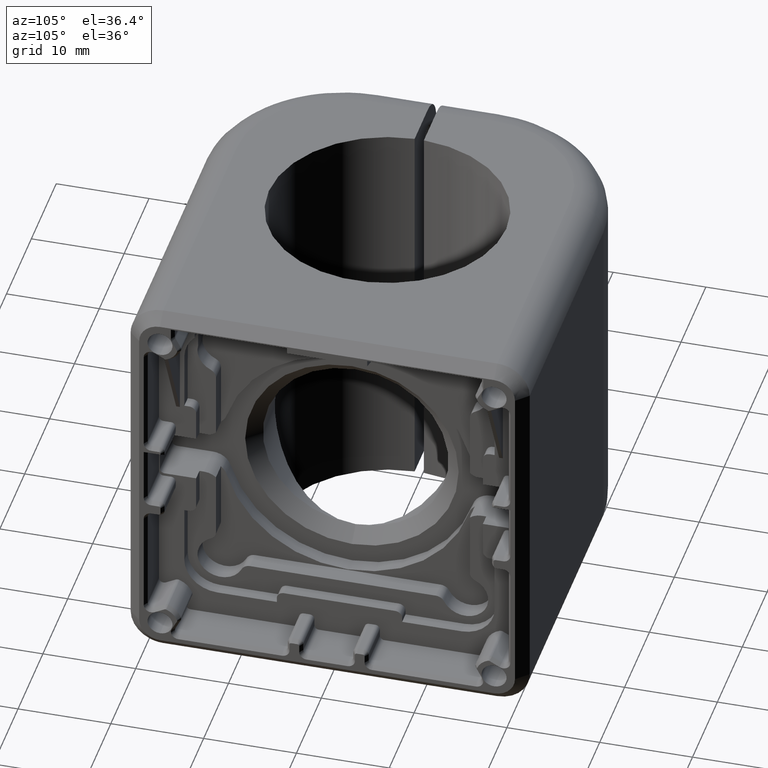
[diagram: clean part render]
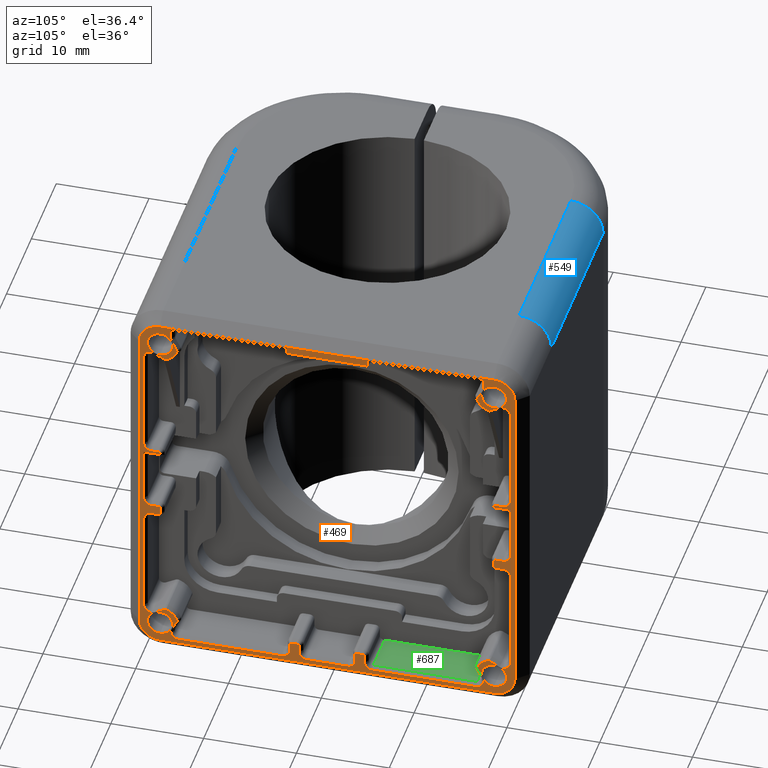
[diagram: same view with three faces highlighted in distinct colors, each labeled with its STEP entity id]
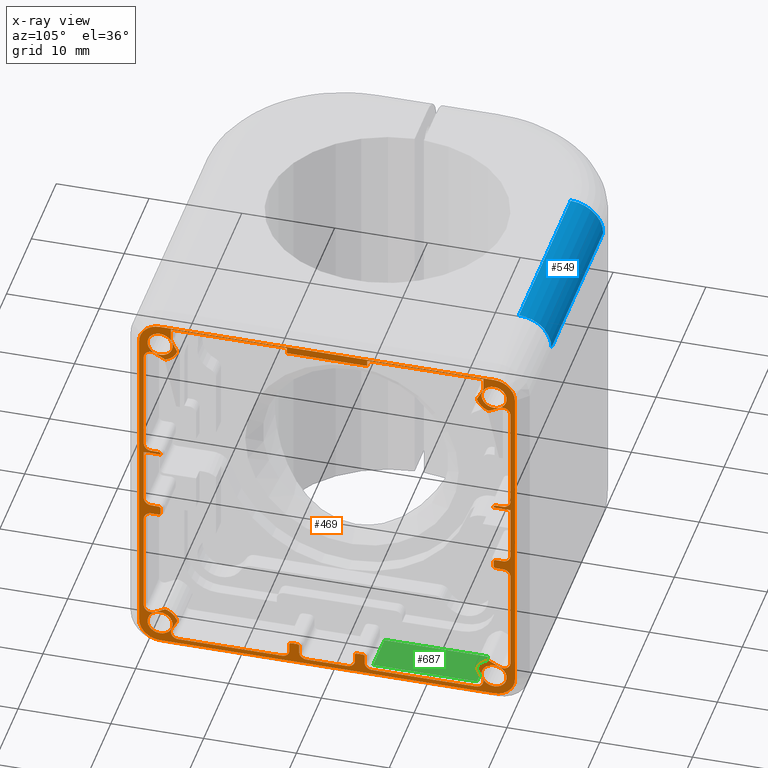
[diagram: x-ray of the same camera — body ghosted, the three highlighted faces saturated]
A machine part, auxiliary view with three faces highlighted in distinct colors.
The next image is the same camera in x-ray (body ghosted, the three faces saturated) — at least one of them is partly hidden behind the body in this view.
Their STEP definitions:

[orange] entity #469 — the highlighted planar face has unit normal (1, 0, 0).
#469=ADVANCED_FACE('',(#1327,#1328,#1329,#1330,#1331,#898),#4246,.T.);
#898=FACE_OUTER_BOUND('',#1363,.F.);
#1327=FACE_BOUND('',#1358,.F.);
#1328=FACE_BOUND('',#1359,.F.);
#1329=FACE_BOUND('',#1360,.F.);
#1330=FACE_BOUND('',#1361,.F.);
#1331=FACE_BOUND('',#1362,.F.);
#1358=EDGE_LOOP('',(#1818,#1819,#1820,#1821,#1822,#1823,#1824,#1825,#1826,
#1827,#1828,#1829,#1830,#1831,#1832,#1833,#1834,#1835,#1836,#1837,#1838,
#1839,#1840,#1841,#1842,#1843,#1844,#1845,#1846,#1847,#1848,#1849,#1850,
#1851,#1852,#1853,#1854,#1855,#1856,#1857,#1858,#1859,#1860,#1861,#1862,
#1863,#1864,#1865,#1866,#1867,#1868,#1869,#1870,#1871,#1872,#1873,#1874,
#1875,#1876,#1877,#1878,#1879,#1880,#1881,#1882,#1883,#1884,#1885,#1886,
#1887,#1888,#1889,#1890,#1891,#1892,#1893,#1894,#1895,#1896,#1897,#1898,
#1899,#1900,#1901,#1902,#1903,#1904,#1905,#1906,#1907,#1908,#1909,#1910,
#1911,#1912,#1913,#1914,#1915,#1916,#1917,#1918,#1919,#1920,#1921,#1922,
#1923));
#1359=EDGE_LOOP('',(#1924,#1925));
#1360=EDGE_LOOP('',(#1926,#1927));
#1361=EDGE_LOOP('',(#1928,#1929));
#1362=EDGE_LOOP('',(#1930,#1931));
#1363=EDGE_LOOP('',(#1932,#1933,#1934,#1935,#1936,#1937,#1938,#1939,#1940,
#1941,#1942,#1943));
#1818=ORIENTED_EDGE('',*,*,#6423,.T.);
#1819=ORIENTED_EDGE('',*,*,#6438,.T.);
#1820=ORIENTED_EDGE('',*,*,#6439,.T.);
#1821=ORIENTED_EDGE('',*,*,#6437,.T.);
#1822=ORIENTED_EDGE('',*,*,#6426,.T.);
#1823=ORIENTED_EDGE('',*,*,#6300,.F.);
#1824=ORIENTED_EDGE('',*,*,#6299,.T.);
#1825=ORIENTED_EDGE('',*,*,#6298,.F.);
#1826=ORIENTED_EDGE('',*,*,#6301,.F.);
#1827=ORIENTED_EDGE('',*,*,#6333,.T.);
#1828=ORIENTED_EDGE('',*,*,#6332,.T.);
#1829=ORIENTED_EDGE('',*,*,#6331,.T.);
#1830=ORIENTED_EDGE('',*,*,#6330,.F.);
#1831=ORIENTED_EDGE('',*,*,#6329,.F.);
#1832=ORIENTED_EDGE('',*,*,#6328,.F.);
#1833=ORIENTED_EDGE('',*,*,#6327,.T.);
#1834=ORIENTED_EDGE('',*,*,#6326,.T.);
#1835=ORIENTED_EDGE('',*,*,#6325,.T.);
#1836=ORIENTED_EDGE('',*,*,#6324,.T.);
#1837=ORIENTED_EDGE('',*,*,#6323,.T.);
#1838=ORIENTED_EDGE('',*,*,#6322,.T.);
#1839=ORIENTED_EDGE('',*,*,#6321,.F.);
#1840=ORIENTED_EDGE('',*,*,#6320,.T.);
#1841=ORIENTED_EDGE('',*,*,#6338,.T.);
#1842=ORIENTED_EDGE('',*,*,#6337,.F.);
#1843=ORIENTED_EDGE('',*,*,#6339,.F.);
#1844=ORIENTED_EDGE('',*,*,#6398,.T.);
#1845=ORIENTED_EDGE('',*,*,#6397,.T.);
#1846=ORIENTED_EDGE('',*,*,#6396,.T.);
#1847=ORIENTED_EDGE('',*,*,#6395,.T.);
#1848=ORIENTED_EDGE('',*,*,#6394,.T.);
#1849=ORIENTED_EDGE('',*,*,#6393,.F.);
#1850=ORIENTED_EDGE('',*,*,#6392,.T.);
#1851=ORIENTED_EDGE('',*,*,#6391,.F.);
#1852=ORIENTED_EDGE('',*,*,#6390,.T.);
#1853=ORIENTED_EDGE('',*,*,#6389,.T.);
#1854=ORIENTED_EDGE('',*,*,#6388,.T.);
#1855=ORIENTED_EDGE('',*,*,#6387,.T.);
#1856=ORIENTED_EDGE('',*,*,#6386,.T.);
#1857=ORIENTED_EDGE('',*,*,#6385,.T.);
#1858=ORIENTED_EDGE('',*,*,#6384,.F.);
#1859=ORIENTED_EDGE('',*,*,#6383,.F.);
#1860=ORIENTED_EDGE('',*,*,#6382,.F.);
#1861=ORIENTED_EDGE('',*,*,#6381,.T.);
#1862=ORIENTED_EDGE('',*,*,#6380,.T.);
#1863=ORIENTED_EDGE('',*,*,#6379,.T.);
#1864=ORIENTED_EDGE('',*,*,#6378,.T.);
#1865=ORIENTED_EDGE('',*,*,#6377,.T.);
#1866=ORIENTED_EDGE('',*,*,#6376,.T.);
#1867=ORIENTED_EDGE('',*,*,#6375,.F.);
#1868=ORIENTED_EDGE('',*,*,#6374,.T.);
#1869=ORIENTED_EDGE('',*,*,#6373,.F.);
#1870=ORIENTED_EDGE('',*,*,#6372,.T.);
#1871=ORIENTED_EDGE('',*,*,#6371,.T.);
#1872=ORIENTED_EDGE('',*,*,#6370,.T.);
#1873=ORIENTED_EDGE('',*,*,#6369,.T.);
#1874=ORIENTED_EDGE('',*,*,#6368,.T.);
#1875=ORIENTED_EDGE('',*,*,#6367,.T.);
#1876=ORIENTED_EDGE('',*,*,#6366,.T.);
#1877=ORIENTED_EDGE('',*,*,#6365,.F.);
#1878=ORIENTED_EDGE('',*,*,#6364,.T.);
#1879=ORIENTED_EDGE('',*,*,#6363,.F.);
#1880=ORIENTED_EDGE('',*,*,#6362,.T.);
#1881=ORIENTED_EDGE('',*,*,#6361,.T.);
#1882=ORIENTED_EDGE('',*,*,#6360,.T.);
#1883=ORIENTED_EDGE('',*,*,#6359,.T.);
#1884=ORIENTED_EDGE('',*,*,#6358,.T.);
#1885=ORIENTED_EDGE('',*,*,#6357,.T.);
#1886=ORIENTED_EDGE('',*,*,#6356,.F.);
#1887=ORIENTED_EDGE('',*,*,#6355,.F.);
#1888=ORIENTED_EDGE('',*,*,#6354,.F.);
#1889=ORIENTED_EDGE('',*,*,#6353,.T.);
#1890=ORIENTED_EDGE('',*,*,#6352,.T.);
#1891=ORIENTED_EDGE('',*,*,#6351,.T.);
#1892=ORIENTED_EDGE('',*,*,#6350,.T.);
#1893=ORIENTED_EDGE('',*,*,#6349,.T.);
#1894=ORIENTED_EDGE('',*,*,#6348,.T.);
#1895=ORIENTED_EDGE('',*,*,#6347,.F.);
#1896=ORIENTED_EDGE('',*,*,#6346,.T.);
#1897=ORIENTED_EDGE('',*,*,#6345,.F.);
#1898=ORIENTED_EDGE('',*,*,#6344,.T.);
#1899=ORIENTED_EDGE('',*,*,#6343,.T.);
#1900=ORIENTED_EDGE('',*,*,#6342,.T.);
#1901=ORIENTED_EDGE('',*,*,#6341,.T.);
#1902=ORIENTED_EDGE('',*,*,#6340,.T.);
#1903=ORIENTED_EDGE('',*,*,#6336,.F.);
#1904=ORIENTED_EDGE('',*,*,#6335,.F.);
#1905=ORIENTED_EDGE('',*,*,#6334,.T.);
#1906=ORIENTED_EDGE('',*,*,#6317,.T.);
#1907=ORIENTED_EDGE('',*,*,#6316,.F.);
#1908=ORIENTED_EDGE('',*,*,#6315,.T.);
#1909=ORIENTED_EDGE('',*,*,#6314,.T.);
#1910=ORIENTED_EDGE('',*,*,#6313,.T.);
#1911=ORIENTED_EDGE('',*,*,#6312,.T.);
#1912=ORIENTED_EDGE('',*,*,#6311,.T.);
#1913=ORIENTED_EDGE('',*,*,#6310,.T.);
#1914=ORIENTED_EDGE('',*,*,#6309,.F.);
#1915=ORIENTED_EDGE('',*,*,#6308,.F.);
#1916=ORIENTED_EDGE('',*,*,#6307,.F.);
#1917=ORIENTED_EDGE('',*,*,#6306,.T.);
#1918=ORIENTED_EDGE('',*,*,#6305,.T.);
#1919=ORIENTED_EDGE('',*,*,#6304,.T.);
#1920=ORIENTED_EDGE('',*,*,#6297,.F.);
#1921=ORIENTED_EDGE('',*,*,#6294,.F.);
#1922=ORIENTED_EDGE('',*,*,#6295,.T.);
#1923=ORIENTED_EDGE('',*,*,#6296,.F.);
#1924=ORIENTED_EDGE('',*,*,#6573,.T.);
#1925=ORIENTED_EDGE('',*,*,#6572,.T.);
#1926=ORIENTED_EDGE('',*,*,#6577,.T.);
#1927=ORIENTED_EDGE('',*,*,#6576,.T.);
#1928=ORIENTED_EDGE('',*,*,#6575,.T.);
#1929=ORIENTED_EDGE('',*,*,#6574,.T.);
#1930=ORIENTED_EDGE('',*,*,#6571,.T.);
#1931=ORIENTED_EDGE('',*,*,#6570,.T.);
#1932=ORIENTED_EDGE('',*,*,#6580,.F.);
#1933=ORIENTED_EDGE('',*,*,#6581,.F.);
#1934=ORIENTED_EDGE('',*,*,#6582,.F.);
#1935=ORIENTED_EDGE('',*,*,#6584,.F.);
#1936=ORIENTED_EDGE('',*,*,#6585,.F.);
#1937=ORIENTED_EDGE('',*,*,#6586,.F.);
#1938=ORIENTED_EDGE('',*,*,#6588,.F.);
#1939=ORIENTED_EDGE('',*,*,#6589,.F.);
#1940=ORIENTED_EDGE('',*,*,#6590,.F.);
#1941=ORIENTED_EDGE('',*,*,#6592,.F.);
#1942=ORIENTED_EDGE('',*,*,#6593,.F.);
#1943=ORIENTED_EDGE('',*,*,#6594,.F.);
#4246=PLANE('',#10187);
#5782=CIRCLE('',#9755,0.800000000000015);
#5783=CIRCLE('',#9756,0.199999999999991);
#5784=CIRCLE('',#9757,1.95000000000002);
#5785=CIRCLE('',#9758,0.199999999999983);
#5786=CIRCLE('',#9759,0.799999999999993);
#5787=CIRCLE('',#9760,0.800000000000007);
#5788=CIRCLE('',#9761,0.800000000000007);
#5789=CIRCLE('',#9762,0.200000000000008);
#5790=CIRCLE('',#9763,0.200000000000026);
#5791=CIRCLE('',#9764,0.799999999999985);
#5792=CIRCLE('',#9765,0.799999999999985);
#5793=CIRCLE('',#9766,0.799999999999993);
#5794=CIRCLE('',#9767,0.20000000000001);
#5795=CIRCLE('',#9768,1.95000000000001);
#5796=CIRCLE('',#9769,0.199999999999981);
#5797=CIRCLE('',#9770,0.800000000000002);
#5798=CIRCLE('',#9771,0.799999999999997);
#5799=CIRCLE('',#9772,0.799999999999997);
#5800=CIRCLE('',#9773,0.200000000000006);
#5801=CIRCLE('',#9774,0.199999999999992);
#5802=CIRCLE('',#9775,0.799999999999985);
#5803=CIRCLE('',#9776,0.799999999999985);
#5804=CIRCLE('',#9777,0.800000000000005);
#5805=CIRCLE('',#9778,0.199999999999988);
#5806=CIRCLE('',#9779,1.95000000000003);
#5807=CIRCLE('',#9780,0.200000000000004);
#5808=CIRCLE('',#9781,0.799999999999996);
#5809=CIRCLE('',#9782,0.800000000000012);
#5810=CIRCLE('',#9783,0.800000000000012);
#5811=CIRCLE('',#9784,0.199999999999987);
#5812=CIRCLE('',#9785,0.200000000000012);
#5813=CIRCLE('',#9786,0.800000000000002);
#5814=CIRCLE('',#9787,0.800000000000002);
#5815=CIRCLE('',#9788,0.800000000000038);
#5816=CIRCLE('',#9789,0.800000000000038);
#5817=CIRCLE('',#9790,0.2);
#5818=CIRCLE('',#9791,0.200000000000016);
#5819=CIRCLE('',#9792,0.800000000000007);
#5820=CIRCLE('',#9793,0.800000000000007);
#5821=CIRCLE('',#9794,0.79999999999998);
#5822=CIRCLE('',#9795,0.200000000000004);
#5823=CIRCLE('',#9796,1.95000000000002);
#5824=CIRCLE('',#9797,0.200000000000009);
#5825=CIRCLE('',#9798,0.799999999999998);
#5826=CIRCLE('',#9799,0.800000000000005);
#5827=CIRCLE('',#9800,0.800000000000005);
#5828=CIRCLE('',#9801,0.200000000000004);
#5829=CIRCLE('',#9802,0.199999999999987);
#5830=CIRCLE('',#9803,0.800000000000008);
#5831=CIRCLE('',#9804,0.800000000000008);
#5914=CIRCLE('',#9887,1.35);
#5915=CIRCLE('',#9888,1.35);
#5916=CIRCLE('',#9889,1.35);
#5917=CIRCLE('',#9890,1.35);
#5918=CIRCLE('',#9891,1.35);
#5919=CIRCLE('',#9892,1.35);
#5920=CIRCLE('',#9893,1.35);
#5921=CIRCLE('',#9894,1.35);
#5922=CIRCLE('',#9895,2.24999999999999);
#5923=CIRCLE('',#9896,2.24999999999999);
#5924=CIRCLE('',#9897,2.24999999999994);
#5925=CIRCLE('',#9898,2.24999999999994);
#5926=CIRCLE('',#9899,2.25);
#5927=CIRCLE('',#9900,2.25);
#5928=CIRCLE('',#9901,2.25000000000001);
#5929=CIRCLE('',#9902,2.25000000000001);
#6294=EDGE_CURVE('',#9699,#9698,#7500,.T.);
#6295=EDGE_CURVE('',#9699,#9697,#7501,.T.);
#6296=EDGE_CURVE('',#9696,#9697,#7502,.T.);
#6297=EDGE_CURVE('',#9698,#9695,#7503,.T.);
#6298=EDGE_CURVE('',#9694,#9693,#7504,.T.);
#6299=EDGE_CURVE('',#9692,#9693,#7505,.T.);
#6300=EDGE_CURVE('',#9692,#9691,#7506,.T.);
#6301=EDGE_CURVE('',#9690,#9694,#7507,.T.);
#6304=EDGE_CURVE('',#9686,#9695,#7510,.T.);
#6305=EDGE_CURVE('',#9685,#9686,#5782,.T.);
#6306=EDGE_CURVE('',#9684,#9685,#7511,.T.);
#6307=EDGE_CURVE('',#9684,#9683,#5783,.T.);
#6308=EDGE_CURVE('',#9683,#9682,#5784,.T.);
#6309=EDGE_CURVE('',#9682,#9681,#5785,.T.);
#6310=EDGE_CURVE('',#9680,#9681,#7512,.T.);
#6311=EDGE_CURVE('',#9679,#9680,#5786,.T.);
#6312=EDGE_CURVE('',#9678,#9679,#7513,.T.);
#6313=EDGE_CURVE('',#9677,#9678,#5787,.T.);
#6314=EDGE_CURVE('',#9676,#9677,#5788,.T.);
#6315=EDGE_CURVE('',#9675,#9676,#7514,.T.);
#6316=EDGE_CURVE('',#9675,#9674,#5789,.T.);
#6317=EDGE_CURVE('',#9689,#9674,#7515,.T.);
#6320=EDGE_CURVE('',#9670,#9672,#7518,.T.);
#6321=EDGE_CURVE('',#9670,#9669,#5790,.T.);
#6322=EDGE_CURVE('',#9668,#9669,#7519,.T.);
#6323=EDGE_CURVE('',#9667,#9668,#5791,.T.);
#6324=EDGE_CURVE('',#9666,#9667,#5792,.T.);
#6325=EDGE_CURVE('',#9665,#9666,#7520,.T.);
#6326=EDGE_CURVE('',#9664,#9665,#5793,.T.);
#6327=EDGE_CURVE('',#9663,#9664,#7521,.T.);
#6328=EDGE_CURVE('',#9663,#9662,#5794,.T.);
#6329=EDGE_CURVE('',#9662,#9661,#5795,.T.);
#6330=EDGE_CURVE('',#9661,#9660,#5796,.T.);
#6331=EDGE_CURVE('',#9659,#9660,#7522,.T.);
#6332=EDGE_CURVE('',#9658,#9659,#5797,.T.);
#6333=EDGE_CURVE('',#9690,#9658,#7523,.T.);
#6334=EDGE_CURVE('',#9657,#9689,#7524,.T.);
#6335=EDGE_CURVE('',#9657,#9656,#7525,.T.);
#6336=EDGE_CURVE('',#9656,#9655,#7526,.T.);
#6337=EDGE_CURVE('',#9654,#9653,#7527,.T.);
#6338=EDGE_CURVE('',#9672,#9653,#7528,.T.);
#6339=EDGE_CURVE('',#9652,#9654,#7529,.T.);
#6340=EDGE_CURVE('',#9651,#9655,#7530,.T.);
#6341=EDGE_CURVE('',#9650,#9651,#7531,.T.);
#6342=EDGE_CURVE('',#9649,#9650,#5798,.T.);
#6343=EDGE_CURVE('',#9648,#9649,#5799,.T.);
#6344=EDGE_CURVE('',#9647,#9648,#7532,.T.);
#6345=EDGE_CURVE('',#9647,#9646,#5800,.T.);
#6346=EDGE_CURVE('',#9645,#9646,#7533,.T.);
#6347=EDGE_CURVE('',#9645,#9644,#5801,.T.);
#6348=EDGE_CURVE('',#9643,#9644,#7534,.T.);
#6349=EDGE_CURVE('',#9642,#9643,#5802,.T.);
#6350=EDGE_CURVE('',#9641,#9642,#5803,.T.);
#6351=EDGE_CURVE('',#9640,#9641,#7535,.T.);
#6352=EDGE_CURVE('',#9639,#9640,#5804,.T.);
#6353=EDGE_CURVE('',#9638,#9639,#7536,.T.);
#6354=EDGE_CURVE('',#9638,#9637,#5805,.T.);
#6355=EDGE_CURVE('',#9637,#9636,#5806,.T.);
#6356=EDGE_CURVE('',#9636,#9635,#5807,.T.);
#6357=EDGE_CURVE('',#9634,#9635,#7537,.T.);
#6358=EDGE_CURVE('',#9633,#9634,#5808,.T.);
#6359=EDGE_CURVE('',#9632,#9633,#7538,.T.);
#6360=EDGE_CURVE('',#9631,#9632,#5809,.T.);
#6361=EDGE_CURVE('',#9630,#9631,#5810,.T.);
#6362=EDGE_CURVE('',#9629,#9630,#7539,.T.);
#6363=EDGE_CURVE('',#9629,#9628,#5811,.T.);
#6364=EDGE_CURVE('',#9627,#9628,#7540,.T.);
#6365=EDGE_CURVE('',#9627,#9626,#5812,.T.);
#6366=EDGE_CURVE('',#9625,#9626,#7541,.T.);
#6367=EDGE_CURVE('',#9624,#9625,#5813,.T.);
#6368=EDGE_CURVE('',#9623,#9624,#5814,.T.);
#6369=EDGE_CURVE('',#9622,#9623,#7542,.T.);
#6370=EDGE_CURVE('',#9621,#9622,#5815,.T.);
#6371=EDGE_CURVE('',#9620,#9621,#5816,.T.);
#6372=EDGE_CURVE('',#9619,#9620,#7543,.T.);
#6373=EDGE_CURVE('',#9619,#9618,#5817,.T.);
#6374=EDGE_CURVE('',#9617,#9618,#7544,.T.);
#6375=EDGE_CURVE('',#9617,#9616,#5818,.T.);
#6376=EDGE_CURVE('',#9615,#9616,#7545,.T.);
#6377=EDGE_CURVE('',#9614,#9615,#5819,.T.);
#6378=EDGE_CURVE('',#9613,#9614,#5820,.T.);
#6379=EDGE_CURVE('',#9612,#9613,#7546,.T.);
#6380=EDGE_CURVE('',#9611,#9612,#5821,.T.);
#6381=EDGE_CURVE('',#9610,#9611,#7547,.T.);
#6382=EDGE_CURVE('',#9610,#9609,#5822,.T.);
#6383=EDGE_CURVE('',#9609,#9608,#5823,.T.);
#6384=EDGE_CURVE('',#9608,#9607,#5824,.T.);
#6385=EDGE_CURVE('',#9606,#9607,#7548,.T.);
#6386=EDGE_CURVE('',#9605,#9606,#5825,.T.);
#6387=EDGE_CURVE('',#9604,#9605,#7549,.T.);
#6388=EDGE_CURVE('',#9603,#9604,#5826,.T.);
#6389=EDGE_CURVE('',#9602,#9603,#5827,.T.);
#6390=EDGE_CURVE('',#9601,#9602,#7550,.T.);
#6391=EDGE_CURVE('',#9601,#9600,#5828,.T.);
#6392=EDGE_CURVE('',#9599,#9600,#7551,.T.);
#6393=EDGE_CURVE('',#9599,#9598,#5829,.T.);
#6394=EDGE_CURVE('',#9597,#9598,#7552,.T.);
#6395=EDGE_CURVE('',#9596,#9597,#5830,.T.);
#6396=EDGE_CURVE('',#9595,#9596,#5831,.T.);
#6397=EDGE_CURVE('',#9594,#9595,#7553,.T.);
#6398=EDGE_CURVE('',#9652,#9594,#7554,.T.);
#6423=EDGE_CURVE('',#9696,#9568,#7573,.T.);
#6426=EDGE_CURVE('',#9564,#9691,#7576,.T.);
#6437=EDGE_CURVE('',#9556,#9564,#7581,.T.);
#6438=EDGE_CURVE('',#9568,#9558,#7582,.T.);
#6439=EDGE_CURVE('',#9558,#9556,#7583,.T.);
#6570=EDGE_CURVE('',#9425,#9424,#5914,.T.);
#6571=EDGE_CURVE('',#9424,#9425,#5915,.T.);
#6572=EDGE_CURVE('',#9423,#9422,#5916,.T.);
#6573=EDGE_CURVE('',#9422,#9423,#5917,.T.);
#6574=EDGE_CURVE('',#9421,#9420,#5918,.T.);
#6575=EDGE_CURVE('',#9420,#9421,#5919,.T.);
#6576=EDGE_CURVE('',#9419,#9418,#5920,.T.);
#6577=EDGE_CURVE('',#9418,#9419,#5921,.T.);
#6580=EDGE_CURVE('',#9415,#9414,#5922,.T.);
#6581=EDGE_CURVE('',#9413,#9415,#5923,.T.);
#6582=EDGE_CURVE('',#9412,#9413,#7596,.T.);
#6584=EDGE_CURVE('',#9409,#9412,#5924,.T.);
#6585=EDGE_CURVE('',#9408,#9409,#5925,.T.);
#6586=EDGE_CURVE('',#9407,#9408,#7598,.T.);
#6588=EDGE_CURVE('',#9404,#9407,#5926,.T.);
#6589=EDGE_CURVE('',#9403,#9404,#5927,.T.);
#6590=EDGE_CURVE('',#9402,#9403,#7600,.T.);
#6592=EDGE_CURVE('',#9399,#9402,#5928,.T.);
#6593=EDGE_CURVE('',#9398,#9399,#5929,.T.);
#6594=EDGE_CURVE('',#9414,#9398,#7602,.T.);
#7500=LINE('',#13936,#8224);
#7501=LINE('',#13937,#8225);
#7502=LINE('',#13938,#8226);
#7503=LINE('',#13939,#8227);
#7504=LINE('',#13940,#8228);
#7505=LINE('',#13941,#8229);
#7506=LINE('',#13942,#8230);
#7507=LINE('',#13943,#8231);
#7510=LINE('',#13946,#8234);
#7511=LINE('',#13948,#8235);
#7512=LINE('',#13952,#8236);
#7513=LINE('',#13954,#8237);
#7514=LINE('',#13957,#8238);
#7515=LINE('',#13959,#8239);
#7518=LINE('',#13962,#8242);
#7519=LINE('',#13964,#8243);
#7520=LINE('',#13967,#8244);
#7521=LINE('',#13969,#8245);
#7522=LINE('',#13973,#8246);
#7523=LINE('',#13975,#8247);
#7524=LINE('',#13976,#8248);
#7525=LINE('',#13977,#8249);
#7526=LINE('',#13978,#8250);
#7527=LINE('',#13979,#8251);
#7528=LINE('',#13980,#8252);
#7529=LINE('',#13981,#8253);
#7530=LINE('',#13982,#8254);
#7531=LINE('',#13983,#8255);
#7532=LINE('',#13986,#8256);
#7533=LINE('',#13988,#8257);
#7534=LINE('',#13990,#8258);
#7535=LINE('',#13993,#8259);
#7536=LINE('',#13995,#8260);
#7537=LINE('',#13999,#8261);
#7538=LINE('',#14001,#8262);
#7539=LINE('',#14004,#8263);
#7540=LINE('',#14006,#8264);
#7541=LINE('',#14008,#8265);
#7542=LINE('',#14011,#8266);
#7543=LINE('',#14014,#8267);
#7544=LINE('',#14016,#8268);
#7545=LINE('',#14018,#8269);
#7546=LINE('',#14021,#8270);
#7547=LINE('',#14023,#8271);
#7548=LINE('',#14027,#8272);
#7549=LINE('',#14029,#8273);
#7550=LINE('',#14032,#8274);
#7551=LINE('',#14034,#8275);
#7552=LINE('',#14036,#8276);
#7553=LINE('',#14039,#8277);
#7554=LINE('',#14040,#8278);
#7573=LINE('',#14637,#8297);
#7576=LINE('',#14640,#8300);
#7581=LINE('',#14861,#8305);
#7582=LINE('',#14862,#8306);
#7583=LINE('',#14863,#8307);
#7596=LINE('',#15672,#8320);
#7598=LINE('',#15676,#8322);
#7600=LINE('',#15680,#8324);
#7602=LINE('',#15684,#8326);
#8224=VECTOR('',#10636,0.299999999999997);
#8225=VECTOR('',#10637,12.2);
#8226=VECTOR('',#10638,0.260958468895637);
#8227=VECTOR('',#10639,0.260958468895637);
#8228=VECTOR('',#10640,0.299999999999997);
#8229=VECTOR('',#10641,12.2);
#8230=VECTOR('',#10642,0.260958468895609);
#8231=VECTOR('',#10643,0.260958468895666);
#8234=VECTOR('',#10646,0.899991861681883);
#8235=VECTOR('',#10649,1.20726560992509);
#8236=VECTOR('',#10656,1.20726505349407);
#8237=VECTOR('',#10659,11.1846544538034);
#8238=VECTOR('',#10664,0.799992763092689);
#8239=VECTOR('',#10667,0.102314669185517);
#8242=VECTOR('',#10670,0.102314669217023);
#8243=VECTOR('',#10673,0.799993265494141);
#8244=VECTOR('',#10678,11.1846469995014);
#8245=VECTOR('',#10681,1.20726560992512);
#8246=VECTOR('',#10688,1.20726505349407);
#8247=VECTOR('',#10691,0.899999999999977);
#8248=VECTOR('',#10692,1.50000289699827);
#8249=VECTOR('',#10693,0.300000000000022);
#8250=VECTOR('',#10694,0.222685126776184);
#8251=VECTOR('',#10695,0.300000000000033);
#8252=VECTOR('',#10696,1.49999551760633);
#8253=VECTOR('',#10697,0.222685126776184);
#8254=VECTOR('',#10698,1.32500001851389);
#8255=VECTOR('',#10699,4.4000000590832);
#8256=VECTOR('',#10704,0.799993307269904);
#8257=VECTOR('',#10707,0.649999873581152);
#8258=VECTOR('',#10710,0.79999326549413);
#8259=VECTOR('',#10715,11.1846469995015);
#8260=VECTOR('',#10718,1.20726560992513);
#8261=VECTOR('',#10725,1.20726505349399);
#8262=VECTOR('',#10728,11.1846544538035);
#8263=VECTOR('',#10733,0.799992763092689);
#8264=VECTOR('',#10736,0.649999873558918);
#8265=VECTOR('',#10739,0.799992982297567);
#8266=VECTOR('',#10744,4.40000005908319);
#8267=VECTOR('',#10749,0.79999330727);
#8268=VECTOR('',#10752,0.649999873581159);
#8269=VECTOR('',#10755,0.799993265494095);
#8270=VECTOR('',#10760,11.184646999499);
#8271=VECTOR('',#10763,1.20726560992509);
#8272=VECTOR('',#10770,1.20726505349406);
#8273=VECTOR('',#10773,11.1846544538034);
#8274=VECTOR('',#10778,0.799992763092696);
#8275=VECTOR('',#10781,0.649999873558897);
#8276=VECTOR('',#10784,0.799992982297571);
#8277=VECTOR('',#10789,4.4000000221562);
#8278=VECTOR('',#10790,1.32500011451424);
#8297=VECTOR('',#10809,0.399993316148027);
#8300=VECTOR('',#10812,0.399993316148027);
#8305=VECTOR('',#10817,2.13465428589519);
#8306=VECTOR('',#10818,2.1346543597386);
#8307=VECTOR('',#10819,4.39999999999988);
#8320=VECTOR('',#11016,36.);
#8322=VECTOR('',#11022,36.0000000000001);
#8324=VECTOR('',#11028,36.);
#8326=VECTOR('',#11034,36.0000000000001);
#9398=VERTEX_POINT('',#13538);
#9399=VERTEX_POINT('',#13539);
#9402=VERTEX_POINT('',#13542);
#9403=VERTEX_POINT('',#13543);
#9404=VERTEX_POINT('',#13544);
#9407=VERTEX_POINT('',#13547);
#9408=VERTEX_POINT('',#13548);
#9409=VERTEX_POINT('',#13549);
#9412=VERTEX_POINT('',#13552);
#9413=VERTEX_POINT('',#13553);
#9414=VERTEX_POINT('',#13554);
#9415=VERTEX_POINT('',#13555);
#9418=VERTEX_POINT('',#13558);
#9419=VERTEX_POINT('',#13559);
#9420=VERTEX_POINT('',#13560);
#9421=VERTEX_POINT('',#13561);
#9422=VERTEX_POINT('',#13562);
#9423=VERTEX_POINT('',#13563);
#9424=VERTEX_POINT('',#13564);
#9425=VERTEX_POINT('',#13565);
#9556=VERTEX_POINT('',#13696);
#9558=VERTEX_POINT('',#13698);
#9564=VERTEX_POINT('',#13704);
#9568=VERTEX_POINT('',#13708);
#9594=VERTEX_POINT('',#13734);
#9595=VERTEX_POINT('',#13735);
#9596=VERTEX_POINT('',#13736);
#9597=VERTEX_POINT('',#13737);
#9598=VERTEX_POINT('',#13738);
#9599=VERTEX_POINT('',#13739);
#9600=VERTEX_POINT('',#13740);
#9601=VERTEX_POINT('',#13741);
#9602=VERTEX_POINT('',#13742);
#9603=VERTEX_POINT('',#13743);
#9604=VERTEX_POINT('',#13744);
#9605=VERTEX_POINT('',#13745);
#9606=VERTEX_POINT('',#13746);
#9607=VERTEX_POINT('',#13747);
#9608=VERTEX_POINT('',#13748);
#9609=VERTEX_POINT('',#13749);
#9610=VERTEX_POINT('',#13750);
#9611=VERTEX_POINT('',#13751);
#9612=VERTEX_POINT('',#13752);
#9613=VERTEX_POINT('',#13753);
#9614=VERTEX_POINT('',#13754);
#9615=VERTEX_POINT('',#13755);
#9616=VERTEX_POINT('',#13756);
#9617=VERTEX_POINT('',#13757);
#9618=VERTEX_POINT('',#13758);
#9619=VERTEX_POINT('',#13759);
#9620=VERTEX_POINT('',#13760);
#9621=VERTEX_POINT('',#13761);
#9622=VERTEX_POINT('',#13762);
#9623=VERTEX_POINT('',#13763);
#9624=VERTEX_POINT('',#13764);
#9625=VERTEX_POINT('',#13765);
#9626=VERTEX_POINT('',#13766);
#9627=VERTEX_POINT('',#13767);
#9628=VERTEX_POINT('',#13768);
#9629=VERTEX_POINT('',#13769);
#9630=VERTEX_POINT('',#13770);
#9631=VERTEX_POINT('',#13771);
#9632=VERTEX_POINT('',#13772);
#9633=VERTEX_POINT('',#13773);
#9634=VERTEX_POINT('',#13774);
#9635=VERTEX_POINT('',#13775);
#9636=VERTEX_POINT('',#13776);
#9637=VERTEX_POINT('',#13777);
#9638=VERTEX_POINT('',#13778);
#9639=VERTEX_POINT('',#13779);
#9640=VERTEX_POINT('',#13780);
#9641=VERTEX_POINT('',#13781);
#9642=VERTEX_POINT('',#13782);
#9643=VERTEX_POINT('',#13783);
#9644=VERTEX_POINT('',#13784);
#9645=VERTEX_POINT('',#13785);
#9646=VERTEX_POINT('',#13786);
#9647=VERTEX_POINT('',#13787);
#9648=VERTEX_POINT('',#13788);
#9649=VERTEX_POINT('',#13789);
#9650=VERTEX_POINT('',#13790);
#9651=VERTEX_POINT('',#13791);
#9652=VERTEX_POINT('',#13792);
#9653=VERTEX_POINT('',#13793);
#9654=VERTEX_POINT('',#13794);
#9655=VERTEX_POINT('',#13795);
#9656=VERTEX_POINT('',#13796);
#9657=VERTEX_POINT('',#13797);
#9658=VERTEX_POINT('',#13798);
#9659=VERTEX_POINT('',#13799);
#9660=VERTEX_POINT('',#13800);
#9661=VERTEX_POINT('',#13801);
#9662=VERTEX_POINT('',#13802);
#9663=VERTEX_POINT('',#13803);
#9664=VERTEX_POINT('',#13804);
#9665=VERTEX_POINT('',#13805);
#9666=VERTEX_POINT('',#13806);
#9667=VERTEX_POINT('',#13807);
#9668=VERTEX_POINT('',#13808);
#9669=VERTEX_POINT('',#13809);
#9670=VERTEX_POINT('',#13810);
#9672=VERTEX_POINT('',#13812);
#9674=VERTEX_POINT('',#13814);
#9675=VERTEX_POINT('',#13815);
#9676=VERTEX_POINT('',#13816);
#9677=VERTEX_POINT('',#13817);
#9678=VERTEX_POINT('',#13818);
#9679=VERTEX_POINT('',#13819);
#9680=VERTEX_POINT('',#13820);
#9681=VERTEX_POINT('',#13821);
#9682=VERTEX_POINT('',#13822);
#9683=VERTEX_POINT('',#13823);
#9684=VERTEX_POINT('',#13824);
#9685=VERTEX_POINT('',#13825);
#9686=VERTEX_POINT('',#13826);
#9689=VERTEX_POINT('',#13829);
#9690=VERTEX_POINT('',#13830);
#9691=VERTEX_POINT('',#13831);
#9692=VERTEX_POINT('',#13832);
#9693=VERTEX_POINT('',#13833);
#9694=VERTEX_POINT('',#13834);
#9695=VERTEX_POINT('',#13835);
#9696=VERTEX_POINT('',#13836);
#9697=VERTEX_POINT('',#13837);
#9698=VERTEX_POINT('',#13838);
#9699=VERTEX_POINT('',#13839);
#9755=AXIS2_PLACEMENT_3D('',#13947,#10647,#10648);
#9756=AXIS2_PLACEMENT_3D('',#13949,#10650,#10651);
#9757=AXIS2_PLACEMENT_3D('',#13950,#10652,#10653);
#9758=AXIS2_PLACEMENT_3D('',#13951,#10654,#10655);
#9759=AXIS2_PLACEMENT_3D('',#13953,#10657,#10658);
#9760=AXIS2_PLACEMENT_3D('',#13955,#10660,#10661);
#9761=AXIS2_PLACEMENT_3D('',#13956,#10662,#10663);
#9762=AXIS2_PLACEMENT_3D('',#13958,#10665,#10666);
#9763=AXIS2_PLACEMENT_3D('',#13963,#10671,#10672);
#9764=AXIS2_PLACEMENT_3D('',#13965,#10674,#10675);
#9765=AXIS2_PLACEMENT_3D('',#13966,#10676,#10677);
#9766=AXIS2_PLACEMENT_3D('',#13968,#10679,#10680);
#9767=AXIS2_PLACEMENT_3D('',#13970,#10682,#10683);
#9768=AXIS2_PLACEMENT_3D('',#13971,#10684,#10685);
#9769=AXIS2_PLACEMENT_3D('',#13972,#10686,#10687);
#9770=AXIS2_PLACEMENT_3D('',#13974,#10689,#10690);
#9771=AXIS2_PLACEMENT_3D('',#13984,#10700,#10701);
#9772=AXIS2_PLACEMENT_3D('',#13985,#10702,#10703);
#9773=AXIS2_PLACEMENT_3D('',#13987,#10705,#10706);
#9774=AXIS2_PLACEMENT_3D('',#13989,#10708,#10709);
#9775=AXIS2_PLACEMENT_3D('',#13991,#10711,#10712);
#9776=AXIS2_PLACEMENT_3D('',#13992,#10713,#10714);
#9777=AXIS2_PLACEMENT_3D('',#13994,#10716,#10717);
#9778=AXIS2_PLACEMENT_3D('',#13996,#10719,#10720);
#9779=AXIS2_PLACEMENT_3D('',#13997,#10721,#10722);
#9780=AXIS2_PLACEMENT_3D('',#13998,#10723,#10724);
#9781=AXIS2_PLACEMENT_3D('',#14000,#10726,#10727);
#9782=AXIS2_PLACEMENT_3D('',#14002,#10729,#10730);
#9783=AXIS2_PLACEMENT_3D('',#14003,#10731,#10732);
#9784=AXIS2_PLACEMENT_3D('',#14005,#10734,#10735);
#9785=AXIS2_PLACEMENT_3D('',#14007,#10737,#10738);
#9786=AXIS2_PLACEMENT_3D('',#14009,#10740,#10741);
#9787=AXIS2_PLACEMENT_3D('',#14010,#10742,#10743);
#9788=AXIS2_PLACEMENT_3D('',#14012,#10745,#10746);
#9789=AXIS2_PLACEMENT_3D('',#14013,#10747,#10748);
#9790=AXIS2_PLACEMENT_3D('',#14015,#10750,#10751);
#9791=AXIS2_PLACEMENT_3D('',#14017,#10753,#10754);
#9792=AXIS2_PLACEMENT_3D('',#14019,#10756,#10757);
#9793=AXIS2_PLACEMENT_3D('',#14020,#10758,#10759);
#9794=AXIS2_PLACEMENT_3D('',#14022,#10761,#10762);
#9795=AXIS2_PLACEMENT_3D('',#14024,#10764,#10765);
#9796=AXIS2_PLACEMENT_3D('',#14025,#10766,#10767);
#9797=AXIS2_PLACEMENT_3D('',#14026,#10768,#10769);
#9798=AXIS2_PLACEMENT_3D('',#14028,#10771,#10772);
#9799=AXIS2_PLACEMENT_3D('',#14030,#10774,#10775);
#9800=AXIS2_PLACEMENT_3D('',#14031,#10776,#10777);
#9801=AXIS2_PLACEMENT_3D('',#14033,#10779,#10780);
#9802=AXIS2_PLACEMENT_3D('',#14035,#10782,#10783);
#9803=AXIS2_PLACEMENT_3D('',#14037,#10785,#10786);
#9804=AXIS2_PLACEMENT_3D('',#14038,#10787,#10788);
#9887=AXIS2_PLACEMENT_3D('',#15612,#10996,#10997);
#9888=AXIS2_PLACEMENT_3D('',#15613,#10998,#10999);
#9889=AXIS2_PLACEMENT_3D('',#15614,#11000,#11001);
#9890=AXIS2_PLACEMENT_3D('',#15615,#11002,#11003);
#9891=AXIS2_PLACEMENT_3D('',#15616,#11004,#11005);
#9892=AXIS2_PLACEMENT_3D('',#15617,#11006,#11007);
#9893=AXIS2_PLACEMENT_3D('',#15618,#11008,#11009);
#9894=AXIS2_PLACEMENT_3D('',#15619,#11010,#11011);
#9895=AXIS2_PLACEMENT_3D('',#15670,#11012,#11013);
#9896=AXIS2_PLACEMENT_3D('',#15671,#11014,#11015);
#9897=AXIS2_PLACEMENT_3D('',#15674,#11018,#11019);
#9898=AXIS2_PLACEMENT_3D('',#15675,#11020,#11021);
#9899=AXIS2_PLACEMENT_3D('',#15678,#11024,#11025);
#9900=AXIS2_PLACEMENT_3D('',#15679,#11026,#11027);
#9901=AXIS2_PLACEMENT_3D('',#15682,#11030,#11031);
#9902=AXIS2_PLACEMENT_3D('',#15683,#11032,#11033);
#10187=AXIS2_PLACEMENT_3D('',#16576,#12210,#12211);
#10636=DIRECTION('',(0.,1.,0.));
#10637=DIRECTION('',(0.,-1.,0.));
#10638=DIRECTION('',(0.,0.,1.));
#10639=DIRECTION('',(0.,0.,-1.));
#10640=DIRECTION('',(0.,1.,0.));
#10641=DIRECTION('',(0.,-1.,0.));
#10642=DIRECTION('',(0.,0.,-1.));
#10643=DIRECTION('',(0.,0.,1.));
#10646=DIRECTION('',(0.,0.,1.));
#10647=DIRECTION('',(1.,0.,0.));
#10648=DIRECTION('',(0.,0.882947592859261,-0.469471562785262));
#10649=DIRECTION('',(0.,0.469471562785248,0.882947592859268));
#10650=DIRECTION('',(1.,0.,0.));
#10651=DIRECTION('',(0.,-0.882947592859278,0.46947156278523));
#10652=DIRECTION('',(1.,0.,0.));
#10653=DIRECTION('',(0.,-0.942385990940897,-0.334527493755512));
#10654=DIRECTION('',(1.,0.,0.));
#10655=DIRECTION('',(0.,-0.334527443805901,-0.942386008671972));
#10656=DIRECTION('',(0.,-0.882947592861211,-0.469471562781594));
#10657=DIRECTION('',(1.,0.,0.));
#10658=DIRECTION('',(0.,1.,1.51321088992519E-08));
#10659=DIRECTION('',(0.,-1.51321211088846E-08,1.));
#10660=DIRECTION('',(1.,0.,0.));
#10661=DIRECTION('',(0.,0.779524187649425,-0.626372126510674));
#10662=DIRECTION('',(1.,0.,0.));
#10663=DIRECTION('',(0.,0.,-1.));
#10664=DIRECTION('',(0.,1.,0.));
#10665=DIRECTION('',(1.,0.,0.));
#10666=DIRECTION('',(0.,0.,1.));
#10667=DIRECTION('',(0.,0.,1.));
#10670=DIRECTION('',(0.,0.,-1.));
#10671=DIRECTION('',(1.,0.,0.));
#10672=DIRECTION('',(0.,1.,0.));
#10673=DIRECTION('',(0.,1.,0.));
#10674=DIRECTION('',(1.,0.,0.));
#10675=DIRECTION('',(0.,-0.626374994486714,-0.77952188313207));
#10676=DIRECTION('',(1.,0.,0.));
#10677=DIRECTION('',(0.,-0.999999999999777,-6.67583783808836E-07));
#10678=DIRECTION('',(0.,6.67583768439262E-07,-0.999999999999777));
#10679=DIRECTION('',(1.,0.,0.));
#10680=DIRECTION('',(0.,0.469471562785261,0.882947592859262));
#10681=DIRECTION('',(0.,-0.882947592859268,0.46947156278525));
#10682=DIRECTION('',(1.,0.,0.));
#10683=DIRECTION('',(0.,-0.469471562785243,-0.882947592859272));
#10684=DIRECTION('',(1.,0.,0.));
#10685=DIRECTION('',(0.,0.334527493755494,-0.942385990940903));
#10686=DIRECTION('',(1.,0.,0.));
#10687=DIRECTION('',(0.,0.942386008671987,-0.334527443805858));
#10688=DIRECTION('',(0.,0.469471562781605,-0.882947592861206));
#10689=DIRECTION('',(1.,0.,0.));
#10690=DIRECTION('',(0.,-1.,0.));
#10691=DIRECTION('',(0.,0.,-1.));
#10692=DIRECTION('',(0.,-1.,0.));
#10693=DIRECTION('',(0.,1.,0.));
#10694=DIRECTION('',(0.,0.,-1.));
#10695=DIRECTION('',(0.,1.,0.));
#10696=DIRECTION('',(0.,-1.,0.));
#10697=DIRECTION('',(0.,0.,1.));
#10698=DIRECTION('',(0.,0.,1.));
#10699=DIRECTION('',(0.,-7.38541153661593E-08,0.999999999999997));
#10700=DIRECTION('',(1.,0.,0.));
#10701=DIRECTION('',(0.,0.779524187649773,-0.626372126510241));
#10702=DIRECTION('',(1.,0.,0.));
#10703=DIRECTION('',(0.,0.,-1.));
#10704=DIRECTION('',(0.,1.,0.));
#10705=DIRECTION('',(1.,0.,0.));
#10706=DIRECTION('',(0.,0.,1.));
#10707=DIRECTION('',(0.,0.,1.));
#10708=DIRECTION('',(1.,0.,0.));
#10709=DIRECTION('',(0.,-1.,0.));
#10710=DIRECTION('',(0.,-1.,0.));
#10711=DIRECTION('',(1.,0.,0.));
#10712=DIRECTION('',(0.,0.626371606112139,0.779524605805679));
#10713=DIRECTION('',(1.,0.,0.));
#10714=DIRECTION('',(0.,0.999999999999777,6.67583819335973E-07));
#10715=DIRECTION('',(0.,-6.67583769074544E-07,0.999999999999777));
#10716=DIRECTION('',(1.,0.,0.));
#10717=DIRECTION('',(0.,-0.469471562785268,-0.882947592859258));
#10718=DIRECTION('',(0.,0.882947592859269,-0.469471562785248));
#10719=DIRECTION('',(1.,0.,0.));
#10720=DIRECTION('',(0.,0.469471562785274,0.882947592859255));
#10721=DIRECTION('',(1.,0.,0.));
#10722=DIRECTION('',(0.,-0.334527493755508,0.942385990940898));
#10723=DIRECTION('',(1.,0.,0.));
#10724=DIRECTION('',(0.,-0.942386008671999,0.334527443805824));
#10725=DIRECTION('',(0.,-0.469471562781601,0.882947592861208));
#10726=DIRECTION('',(1.,0.,0.));
#10727=DIRECTION('',(0.,1.51321266628205E-08,-1.));
#10728=DIRECTION('',(0.,1.,1.513212206181E-08));
#10729=DIRECTION('',(1.,0.,0.));
#10730=DIRECTION('',(0.,-0.626372126510658,-0.779524187649438));
#10731=DIRECTION('',(1.,0.,0.));
#10732=DIRECTION('',(0.,-1.,0.));
#10733=DIRECTION('',(0.,0.,-1.));
#10734=DIRECTION('',(1.,0.,0.));
#10735=DIRECTION('',(0.,1.,0.));
#10736=DIRECTION('',(0.,1.,0.));
#10737=DIRECTION('',(1.,0.,0.));
#10738=DIRECTION('',(0.,0.,1.));
#10739=DIRECTION('',(0.,0.,1.));
#10740=DIRECTION('',(1.,0.,0.));
#10741=DIRECTION('',(0.,0.779524233910164,-0.626372068938879));
#10742=DIRECTION('',(1.,0.,0.));
#10743=DIRECTION('',(0.,7.38541250377965E-08,-0.999999999999997));
#10744=DIRECTION('',(0.,0.999999999999997,7.38541145587246E-08));
#10745=DIRECTION('',(1.,0.,0.));
#10746=DIRECTION('',(0.,-0.626372126510086,-0.779524187649898));
#10747=DIRECTION('',(1.,0.,0.));
#10748=DIRECTION('',(0.,-1.,0.));
#10749=DIRECTION('',(0.,0.,-1.));
#10750=DIRECTION('',(1.,0.,0.));
#10751=DIRECTION('',(0.,1.,0.));
#10752=DIRECTION('',(0.,1.,0.));
#10753=DIRECTION('',(1.,0.,0.));
#10754=DIRECTION('',(0.,0.,1.));
#10755=DIRECTION('',(0.,0.,1.));
#10756=DIRECTION('',(1.,0.,0.));
#10757=DIRECTION('',(0.,0.779524605805611,-0.626371606112223));
#10758=DIRECTION('',(1.,0.,0.));
#10759=DIRECTION('',(0.,6.67586280700389E-07,-0.999999999999777));
#10760=DIRECTION('',(0.,0.999999999999777,6.67583769074693E-07));
#10761=DIRECTION('',(1.,0.,0.));
#10762=DIRECTION('',(0.,-0.882947592859285,0.469471562785218));
#10763=DIRECTION('',(0.,-0.469471562785255,-0.882947592859265));
#10764=DIRECTION('',(1.,0.,0.));
#10765=DIRECTION('',(0.,0.882947592859294,-0.469471562785201));
#10766=DIRECTION('',(1.,0.,0.));
#10767=DIRECTION('',(0.,0.942385990940912,0.334527493755468));
#10768=DIRECTION('',(1.,0.,0.));
#10769=DIRECTION('',(0.,0.334527443805887,0.942386008671977));
#10770=DIRECTION('',(0.,0.882947592861211,0.469471562781595));
#10771=DIRECTION('',(1.,0.,0.));
#10772=DIRECTION('',(0.,-1.,-1.51321444263886E-08));
#10773=DIRECTION('',(0.,1.51321214265265E-08,-1.));
#10774=DIRECTION('',(1.,0.,0.));
#10775=DIRECTION('',(0.,-0.779524187649502,0.626372126510579));
#10776=DIRECTION('',(1.,0.,0.));
#10777=DIRECTION('',(0.,0.,1.));
#10778=DIRECTION('',(0.,-1.,0.));
#10779=DIRECTION('',(1.,0.,0.));
#10780=DIRECTION('',(0.,0.,-1.));
#10781=DIRECTION('',(0.,0.,-1.));
#10782=DIRECTION('',(1.,0.,0.));
#10783=DIRECTION('',(0.,1.,0.));
#10784=DIRECTION('',(0.,1.,0.));
#10785=DIRECTION('',(1.,0.,0.));
#10786=DIRECTION('',(0.,-0.626372068938912,-0.779524233910137));
#10787=DIRECTION('',(1.,0.,0.));
#10788=DIRECTION('',(0.,-0.999999999999997,-7.38540961719985E-08));
#10789=DIRECTION('',(0.,7.38541151785449E-08,-0.999999999999997));
#10790=DIRECTION('',(0.,0.,-1.));
#10809=DIRECTION('',(0.,0.,-1.));
#10812=DIRECTION('',(0.,0.,1.));
#10817=DIRECTION('',(0.,-1.,0.));
#10818=DIRECTION('',(0.,-1.,0.));
#10819=DIRECTION('',(0.,-0.999999999999997,-7.38541220099187E-08));
#10996=DIRECTION('',(1.,0.,0.));
#10997=DIRECTION('',(0.,0.,-1.));
#10998=DIRECTION('',(1.,0.,0.));
#10999=DIRECTION('',(0.,0.,1.));
#11000=DIRECTION('',(1.,0.,0.));
#11001=DIRECTION('',(0.,0.,-1.));
#11002=DIRECTION('',(1.,0.,0.));
#11003=DIRECTION('',(0.,0.,1.));
#11004=DIRECTION('',(1.,0.,0.));
#11005=DIRECTION('',(0.,0.,-1.));
#11006=DIRECTION('',(1.,0.,0.));
#11007=DIRECTION('',(0.,0.,1.));
#11008=DIRECTION('',(1.,0.,0.));
#11009=DIRECTION('',(0.,0.,-1.));
#11010=DIRECTION('',(1.,0.,0.));
#11011=DIRECTION('',(0.,0.,1.));
#11012=DIRECTION('',(1.,0.,0.));
#11013=DIRECTION('',(0.,0.798437501616298,-0.602077699315232));
#11014=DIRECTION('',(1.,0.,0.));
#11015=DIRECTION('',(0.,0.,-1.));
#11016=DIRECTION('',(0.,1.,0.));
#11018=DIRECTION('',(1.,0.,0.));
#11019=DIRECTION('',(0.,-0.60207769931522,-0.798437501616308));
#11020=DIRECTION('',(1.,0.,0.));
#11021=DIRECTION('',(0.,-1.,0.));
#11022=DIRECTION('',(0.,0.,-1.));
#11024=DIRECTION('',(1.,0.,0.));
#11025=DIRECTION('',(0.,-0.798437501616296,0.602077699315235));
#11026=DIRECTION('',(1.,0.,0.));
#11027=DIRECTION('',(0.,0.,1.));
#11028=DIRECTION('',(0.,-1.,0.));
#11030=DIRECTION('',(1.,0.,0.));
#11031=DIRECTION('',(0.,0.602077699315213,0.798437501616313));
#11032=DIRECTION('',(1.,0.,0.));
#11033=DIRECTION('',(0.,1.,0.));
#11034=DIRECTION('',(0.,0.,1.));
#12210=DIRECTION('',(1.,0.,0.));
#12211=DIRECTION('',(0.,0.,1.));
#13538=CARTESIAN_POINT('',(197.664999714696,20.2500000273402,-110.500000262459));
#13539=CARTESIAN_POINT('',(197.664999714696,19.3546748507995,-108.703515883822));
#13542=CARTESIAN_POINT('',(197.664999714696,18.0000000273402,-108.250000262459));
#13543=CARTESIAN_POINT('',(197.664999714696,-17.9999999726598,-108.250000262459));
#13544=CARTESIAN_POINT('',(197.664999714696,-19.7964843512964,-109.145325439));
#13547=CARTESIAN_POINT('',(197.664999714696,-20.2499999726598,-110.500000262459));
#13548=CARTESIAN_POINT('',(197.664999714696,-20.2499999726598,-146.500000262459));
#13549=CARTESIAN_POINT('',(197.664999714696,-19.354674796119,-148.296484641096));
#13552=CARTESIAN_POINT('',(197.664999714696,-17.9999999726598,-148.750000262459));
#13553=CARTESIAN_POINT('',(197.664999714696,18.0000000273402,-148.750000262459));
#13554=CARTESIAN_POINT('',(197.664999714696,20.2500000273402,-146.500000262459));
#13555=CARTESIAN_POINT('',(197.664999714696,19.7964844059769,-147.854675085918));
#13558=CARTESIAN_POINT('',(197.664999714696,-17.9999966856397,-145.150000262458));
#13559=CARTESIAN_POINT('',(197.664999714696,-17.9999966856397,-147.850000262458));
#13560=CARTESIAN_POINT('',(197.664999714696,-17.9999962747626,-109.150000673337));
#13561=CARTESIAN_POINT('',(197.664999714696,-17.9999962747626,-111.850000673337));
#13562=CARTESIAN_POINT('',(197.664999714696,17.9999963294426,-145.150000262458));
#13563=CARTESIAN_POINT('',(197.664999714696,17.9999963294426,-147.850000262458));
#13564=CARTESIAN_POINT('',(197.664999714696,17.9999967403201,-109.15000026246));
#13565=CARTESIAN_POINT('',(197.664999714696,17.9999967403201,-111.85000026246));
#13696=CARTESIAN_POINT('',(197.664995342889,-2.19999999111781,-109.050004913606));
#13698=CARTESIAN_POINT('',(197.664995568554,2.19999999965024,-109.050004669887));
#13704=CARTESIAN_POINT('',(197.664999714696,-4.33465429547657,-109.050000192054));
#13708=CARTESIAN_POINT('',(197.664999714696,4.33465435015708,-109.050000192054));
#13734=CARTESIAN_POINT('',(197.664999714696,-19.7499955461768,-126.300000299381));
#13735=CARTESIAN_POINT('',(197.664999714696,-19.7499937476621,-130.700000321537));
#13736=CARTESIAN_POINT('',(197.664999714696,-19.4510914028133,-131.323619649582));
#13737=CARTESIAN_POINT('',(197.664999714696,-18.9499937476624,-131.500000262453));
#13738=CARTESIAN_POINT('',(197.664999714696,-18.1500007653648,-131.500000262453));
#13739=CARTESIAN_POINT('',(197.664999714696,-17.9500007653649,-131.700000262454));
#13740=CARTESIAN_POINT('',(197.664999714696,-17.9500007653664,-132.350000136013));
#13741=CARTESIAN_POINT('',(197.664999714696,-18.1500007653666,-132.550000136013));
#13742=CARTESIAN_POINT('',(197.664999714697,-18.9499935284592,-132.550000136013));
#13743=CARTESIAN_POINT('',(197.664999714696,-19.5736128785796,-132.848902434803));
#13744=CARTESIAN_POINT('',(197.664999714696,-19.74999352846,-133.350000136012));
#13745=CARTESIAN_POINT('',(197.664999714696,-19.7499933592124,-144.534654589815));
#13746=CARTESIAN_POINT('',(197.664999714696,-18.5744161089871,-145.241012651999));
#13747=CARTESIAN_POINT('',(197.664999714696,-17.5084643360591,-144.674236040643));
#13748=CARTESIAN_POINT('',(197.664999714696,-17.3476645347416,-144.662348357481));
#13749=CARTESIAN_POINT('',(197.664999714696,-16.1623403678283,-145.847672461568));
#13750=CARTESIAN_POINT('',(197.664999714696,-16.1742280474447,-146.008472272876));
#13751=CARTESIAN_POINT('',(197.664999714696,-16.7410049200331,-147.074424537101));
#13752=CARTESIAN_POINT('',(197.664999714696,-16.0346463116787,-148.250001787329));
#13753=CARTESIAN_POINT('',(197.66499795944,-4.84999931217873,-148.249997246024));
#13754=CARTESIAN_POINT('',(197.664999714696,-4.22638016160218,-147.951091605531));
#13755=CARTESIAN_POINT('',(197.664999714696,-4.04999984624668,-147.449994320642));
#13756=CARTESIAN_POINT('',(197.664999714696,-4.04999984624599,-146.650001055147));
#13757=CARTESIAN_POINT('',(197.664999714696,-3.84999984624554,-146.450001055148));
#13758=CARTESIAN_POINT('',(197.664999714697,-3.19999997266439,-146.450001055147));
#13759=CARTESIAN_POINT('',(197.664999714696,-2.99999997266484,-146.650001055149));
#13760=CARTESIAN_POINT('',(197.664999714696,-2.99999997266509,-147.449994362419));
#13761=CARTESIAN_POINT('',(197.664999714696,-2.70109767387318,-148.073613712539));
#13762=CARTESIAN_POINT('',(197.664999714696,-2.19999997266508,-148.249994362419));
#13763=CARTESIAN_POINT('',(197.664999621835,2.20000008641811,-148.249994192229));
#13764=CARTESIAN_POINT('',(197.664999714696,2.82361941446295,-147.951091692612));
#13765=CARTESIAN_POINT('',(197.664999714696,3.00000002733481,-147.449994037461));
#13766=CARTESIAN_POINT('',(197.664999714696,3.00000002733505,-146.650001055164));
#13767=CARTESIAN_POINT('',(197.664999714696,3.20000002733551,-146.450001055164));
#13768=CARTESIAN_POINT('',(197.664999714697,3.84999990089442,-146.450001055164));
#13769=CARTESIAN_POINT('',(197.664999714696,4.04999990089393,-146.650001055166));
#13770=CARTESIAN_POINT('',(197.664999714696,4.04999990089322,-147.449993818258));
#13771=CARTESIAN_POINT('',(197.664999714696,4.3489021996847,-148.073613168379));
#13772=CARTESIAN_POINT('',(197.664999714696,4.84999990089323,-148.249993818259));
#13773=CARTESIAN_POINT('',(197.66499967491,16.0346543546967,-148.249993715322));
#13774=CARTESIAN_POINT('',(197.664999714696,16.74101241688,-147.074416398786));
#13775=CARTESIAN_POINT('',(197.664999714696,16.1742358055245,-146.008464625858));
#13776=CARTESIAN_POINT('',(197.664999714696,16.1623481223624,-145.847664824541));
#13777=CARTESIAN_POINT('',(197.664999714696,17.3476722264495,-144.662340657627));
#13778=CARTESIAN_POINT('',(197.664999714696,17.5084720377577,-144.674228337244));
#13779=CARTESIAN_POINT('',(197.664999714696,18.5744243019828,-145.241005209832));
#13780=CARTESIAN_POINT('',(197.664999714696,19.7500015522108,-144.534646601478));
#13781=CARTESIAN_POINT('',(197.664999714696,19.749994085522,-133.349999601979));
#13782=CARTESIAN_POINT('',(197.664999714696,19.4510913704119,-132.726380451401));
#13783=CARTESIAN_POINT('',(197.664999714696,18.9499940855229,-132.550000136046));
#13784=CARTESIAN_POINT('',(197.664999714697,18.1500008200288,-132.550000136046));
#13785=CARTESIAN_POINT('',(197.664999714696,17.950000820029,-132.350000136045));
#13786=CARTESIAN_POINT('',(197.664999714696,17.9500008200305,-131.700000262463));
#13787=CARTESIAN_POINT('',(197.664999714696,18.1500008200306,-131.500000262464));
#13788=CARTESIAN_POINT('',(197.664999714696,18.9499941273005,-131.500000262464));
#13789=CARTESIAN_POINT('',(197.664999714696,19.5736134774205,-131.201097963672));
#13790=CARTESIAN_POINT('',(197.664999714696,19.7499941273007,-130.700000262464));
#13791=CARTESIAN_POINT('',(197.664999714696,19.7499971072434,-126.300000203381));
#13792=CARTESIAN_POINT('',(197.664999714696,-19.7499962829551,-124.975000184866));
#13793=CARTESIAN_POINT('',(197.664999714696,-19.4499962829551,-124.75231505809));
#13794=CARTESIAN_POINT('',(197.664999714696,-19.7499962829551,-124.75231505809));
#13795=CARTESIAN_POINT('',(197.664999714696,19.7500037170449,-124.975000184866));
#13796=CARTESIAN_POINT('',(197.664999714696,19.7500037170449,-124.75231505809));
#13797=CARTESIAN_POINT('',(197.664999714696,19.4500037170449,-124.75231505809));
#13798=CARTESIAN_POINT('',(197.664999714696,-16.8346542929546,-109.550006875906));
#13799=CARTESIAN_POINT('',(197.664999714696,-16.7410123621995,-109.925584126131));
#13800=CARTESIAN_POINT('',(197.664999714696,-16.1742357508441,-110.991535899059));
#13801=CARTESIAN_POINT('',(197.664999714696,-16.1623480676819,-111.152335700377));
#13802=CARTESIAN_POINT('',(197.664999714696,-17.3476721717691,-112.33765986729));
#13803=CARTESIAN_POINT('',(197.664999714696,-17.5084719830772,-112.325772187674));
#13804=CARTESIAN_POINT('',(197.664999714696,-18.5744242473023,-111.758995315085));
#13805=CARTESIAN_POINT('',(197.664999714696,-19.7500014975304,-112.46535392344));
#13806=CARTESIAN_POINT('',(197.664999714696,-19.7499940308416,-123.650000922939));
#13807=CARTESIAN_POINT('',(197.664999714696,-19.4510940264311,-124.273617895378));
#13808=CARTESIAN_POINT('',(197.664999714696,-18.9499940308425,-124.450000388872));
#13809=CARTESIAN_POINT('',(197.664999714697,-18.1500007653483,-124.450000388872));
#13810=CARTESIAN_POINT('',(197.664999714696,-17.9500007653485,-124.650000388873));
#13812=CARTESIAN_POINT('',(197.664999714696,-17.9500007653488,-124.75231505809));
#13814=CARTESIAN_POINT('',(197.664999714696,17.9500008200469,-124.650000388905));
#13815=CARTESIAN_POINT('',(197.664999714696,18.150000820047,-124.450000388905));
#13816=CARTESIAN_POINT('',(197.664999714697,18.9499935831397,-124.450000388905));
#13817=CARTESIAN_POINT('',(197.664999714696,19.57361293326,-124.151098090114));
#13818=CARTESIAN_POINT('',(197.664999714696,19.7499935831404,-123.650000388906));
#13819=CARTESIAN_POINT('',(197.664999714696,19.7499934138929,-112.465345935102));
#13820=CARTESIAN_POINT('',(197.664999714696,18.5744161636676,-111.758987872919));
#13821=CARTESIAN_POINT('',(197.664999714696,17.5084643907396,-112.325764484275));
#13822=CARTESIAN_POINT('',(197.664999714696,17.3476645894221,-112.337652167437));
#13823=CARTESIAN_POINT('',(197.664999714696,16.1623404225088,-111.15232806335));
#13824=CARTESIAN_POINT('',(197.664999714696,16.1742281021251,-110.991528252041));
#13825=CARTESIAN_POINT('',(197.664999714696,16.7410049747136,-109.925575987816));
#13826=CARTESIAN_POINT('',(197.664999714696,16.8346493836698,-109.549998737588));
#13829=CARTESIAN_POINT('',(197.664999714696,17.9500008200466,-124.75231505809));
#13830=CARTESIAN_POINT('',(197.664999714696,-16.8346542954766,-108.650006875906));
#13831=CARTESIAN_POINT('',(197.664999714696,-4.33465429547657,-108.650006875906));
#13832=CARTESIAN_POINT('',(197.664999714696,-4.33465429547657,-108.389048407011));
#13833=CARTESIAN_POINT('',(197.664999714696,-16.5346542954766,-108.389048407011));
#13834=CARTESIAN_POINT('',(197.664999714696,-16.8346542954766,-108.389048407011));
#13835=CARTESIAN_POINT('',(197.664999714696,16.8346543501571,-108.650006875906));
#13836=CARTESIAN_POINT('',(197.664999714696,4.33465435015708,-108.650006875906));
#13837=CARTESIAN_POINT('',(197.664999714696,4.33465435015708,-108.389048407011));
#13838=CARTESIAN_POINT('',(197.664999714696,16.8346543501571,-108.389048407011));
#13839=CARTESIAN_POINT('',(197.664999714696,16.5346543501571,-108.389048407011));
#13936=CARTESIAN_POINT('',(197.664999714696,16.5346543501571,-108.389048407011));
#13937=CARTESIAN_POINT('',(197.664999714696,16.5346543501571,-108.389048407011));
#13938=CARTESIAN_POINT('',(197.664999714696,4.33465435015708,-108.650006875906));
#13939=CARTESIAN_POINT('',(197.664999714696,16.8346543501571,-108.389048407011));
#13940=CARTESIAN_POINT('',(197.664999714696,-16.8346542954766,-108.389048407011));
#13941=CARTESIAN_POINT('',(197.664999714696,-4.33465429547657,-108.389048407011));
#13942=CARTESIAN_POINT('',(197.664999714696,-4.33465429547657,-108.389048407011));
#13943=CARTESIAN_POINT('',(197.664999714696,-16.8346542954766,-108.650006875906));
#13946=CARTESIAN_POINT('',(197.664999714696,16.8346543501571,-109.549998737588));
#13947=CARTESIAN_POINT('',(197.664999714696,16.0346469004262,-109.549998737588));
#13948=CARTESIAN_POINT('',(197.664999714696,16.1742281021252,-110.991528252041));
#13949=CARTESIAN_POINT('',(197.664999714696,16.350817620697,-111.085422564598));
#13950=CARTESIAN_POINT('',(197.664999714696,17.9999931048435,-110.499999450526));
#13951=CARTESIAN_POINT('',(197.664999714696,17.4145700781833,-112.149174965702));
#13952=CARTESIAN_POINT('',(197.664999714696,18.5744161636676,-111.758987872919));
#13953=CARTESIAN_POINT('',(197.664999714696,18.9499934138929,-112.465345947208));
#13954=CARTESIAN_POINT('',(197.664999714696,19.7499935831404,-123.650000388906));
#13955=CARTESIAN_POINT('',(197.664999714696,18.9499935831404,-123.650000388906));
#13956=CARTESIAN_POINT('',(197.664999714696,18.9499935831404,-123.650000388906));
#13957=CARTESIAN_POINT('',(197.664999714696,18.150000820047,-124.450000388905));
#13958=CARTESIAN_POINT('',(197.664999714696,18.1500008200469,-124.650000388905));
#13959=CARTESIAN_POINT('',(197.664999714696,17.9500008200466,-124.75231505809));
#13962=CARTESIAN_POINT('',(197.664999714696,-17.9500007653485,-124.650000388873));
#13963=CARTESIAN_POINT('',(197.664999714696,-18.1500007653485,-124.650000388873));
#13964=CARTESIAN_POINT('',(197.664999714696,-18.9499940308425,-124.450000388872));
#13965=CARTESIAN_POINT('',(197.664999714696,-18.9499940308418,-123.650000388872));
#13966=CARTESIAN_POINT('',(197.664999714696,-18.9499940308418,-123.650000388872));
#13967=CARTESIAN_POINT('',(197.664999714696,-19.7500014975304,-112.46535392344));
#13968=CARTESIAN_POINT('',(197.664999714696,-18.9500014975305,-112.465353389373));
#13969=CARTESIAN_POINT('',(197.664999714696,-17.5084719830772,-112.325772187674));
#13970=CARTESIAN_POINT('',(197.664999714696,-17.4145776705202,-112.149182669102));
#13971=CARTESIAN_POINT('',(197.664999714696,-18.0000007845923,-110.500007184956));
#13972=CARTESIAN_POINT('',(197.664999714696,-16.3508252694163,-111.085430211616));
#13973=CARTESIAN_POINT('',(197.664999714696,-16.7410123621995,-109.925584126131));
#13974=CARTESIAN_POINT('',(197.664999714696,-16.0346542879105,-109.550006875906));
#13975=CARTESIAN_POINT('',(197.664999714696,-16.8346542954766,-108.650006875906));
#13976=CARTESIAN_POINT('',(197.664999714696,19.4500037170449,-124.75231505809));
#13977=CARTESIAN_POINT('',(197.664999714696,19.4500037170449,-124.75231505809));
#13978=CARTESIAN_POINT('',(197.664999714696,19.7500037170449,-124.75231505809));
#13979=CARTESIAN_POINT('',(197.664999714696,-19.7499962829551,-124.75231505809));
#13980=CARTESIAN_POINT('',(197.664999714696,-17.9500007653488,-124.75231505809));
#13981=CARTESIAN_POINT('',(197.664999714696,-19.7499962829551,-124.975000184866));
#13982=CARTESIAN_POINT('',(197.664999714696,19.7500037170449,-126.30000020338));
#13983=CARTESIAN_POINT('',(197.664999714696,19.7499941273007,-130.700000262464));
#13984=CARTESIAN_POINT('',(197.664999714696,18.9499941273007,-130.700000262464));
#13985=CARTESIAN_POINT('',(197.664999714696,18.9499941273007,-130.700000262464));
#13986=CARTESIAN_POINT('',(197.664999714696,18.1500008200306,-131.500000262464));
#13987=CARTESIAN_POINT('',(197.664999714696,18.1500008200305,-131.700000262464));
#13988=CARTESIAN_POINT('',(197.664999714696,17.950000820029,-132.350000136045));
#13989=CARTESIAN_POINT('',(197.664999714696,18.150000820029,-132.350000136045));
#13990=CARTESIAN_POINT('',(197.664999714696,18.9499940855229,-132.550000136046));
#13991=CARTESIAN_POINT('',(197.664999714696,18.9499940855222,-133.350000136046));
#13992=CARTESIAN_POINT('',(197.664999714696,18.9499940855222,-133.350000136046));
#13993=CARTESIAN_POINT('',(197.664999714696,19.7500015522108,-144.534646601478));
#13994=CARTESIAN_POINT('',(197.664999714696,18.950001552211,-144.534647135545));
#13995=CARTESIAN_POINT('',(197.664999714696,17.5084720377576,-144.674228337244));
#13996=CARTESIAN_POINT('',(197.664999714696,17.4145777252006,-144.850817855816));
#13997=CARTESIAN_POINT('',(197.664999714696,18.0000008392728,-146.499993339962));
#13998=CARTESIAN_POINT('',(197.664999714696,16.3508253240968,-145.914570313302));
#13999=CARTESIAN_POINT('',(197.664999714696,16.74101241688,-147.074416398786));
#14000=CARTESIAN_POINT('',(197.664999714696,16.034654342591,-147.449993649012));
#14001=CARTESIAN_POINT('',(197.664999714696,4.84999990089323,-148.249993818259));
#14002=CARTESIAN_POINT('',(197.664999714696,4.84999990089323,-147.449993818259));
#14003=CARTESIAN_POINT('',(197.664999714696,4.84999990089323,-147.449993818259));
#14004=CARTESIAN_POINT('',(197.664999714696,4.04999990089394,-146.650001055166));
#14005=CARTESIAN_POINT('',(197.664999714696,3.84999990089394,-146.650001055165));
#14006=CARTESIAN_POINT('',(197.664999714696,3.2000000273355,-146.450001055164));
#14007=CARTESIAN_POINT('',(197.664999714696,3.20000002733505,-146.650001055164));
#14008=CARTESIAN_POINT('',(197.664999714696,3.0000000273348,-147.449994037461));
#14009=CARTESIAN_POINT('',(197.664999714696,2.20000002733481,-147.449994037461));
#14010=CARTESIAN_POINT('',(197.664999714696,2.20000002733481,-147.449994037461));
#14011=CARTESIAN_POINT('',(197.664999714696,-2.19999997266508,-148.249994362419));
#14012=CARTESIAN_POINT('',(197.664999714696,-2.19999997266508,-147.449994362419));
#14013=CARTESIAN_POINT('',(197.664999714696,-2.19999997266508,-147.449994362419));
#14014=CARTESIAN_POINT('',(197.664999714696,-2.99999997266484,-146.650001055149));
#14015=CARTESIAN_POINT('',(197.664999714696,-3.19999997266484,-146.650001055149));
#14016=CARTESIAN_POINT('',(197.664999714696,-3.84999984624555,-146.450001055148));
#14017=CARTESIAN_POINT('',(197.664999714696,-3.84999984624599,-146.650001055148));
#14018=CARTESIAN_POINT('',(197.664999714696,-4.0499998462467,-147.449994320642));
#14019=CARTESIAN_POINT('',(197.664999714696,-4.84999984624669,-147.449994320641));
#14020=CARTESIAN_POINT('',(197.664999714696,-4.84999984624669,-147.449994320641));
#14021=CARTESIAN_POINT('',(197.664999714696,-16.0346463116787,-148.250001787329));
#14022=CARTESIAN_POINT('',(197.664999714696,-16.0346468457457,-147.45000178733));
#14023=CARTESIAN_POINT('',(197.664999714696,-16.1742280474447,-146.008472272876));
#14024=CARTESIAN_POINT('',(197.664999714696,-16.3508175660165,-145.914577960319));
#14025=CARTESIAN_POINT('',(197.664999714696,-17.9999930501631,-146.500001074391));
#14026=CARTESIAN_POINT('',(197.664999714696,-17.4145700235028,-144.850825559215));
#14027=CARTESIAN_POINT('',(197.664999714696,-18.5744161089871,-145.241012651999));
#14028=CARTESIAN_POINT('',(197.664999714696,-18.9499933592124,-144.53465457771));
#14029=CARTESIAN_POINT('',(197.664999714696,-19.74999352846,-133.350000136012));
#14030=CARTESIAN_POINT('',(197.664999714696,-18.94999352846,-133.350000136012));
#14031=CARTESIAN_POINT('',(197.664999714696,-18.94999352846,-133.350000136012));
#14032=CARTESIAN_POINT('',(197.664999714696,-18.1500007653666,-132.550000136013));
#14033=CARTESIAN_POINT('',(197.664999714696,-18.1500007653664,-132.350000136013));
#14034=CARTESIAN_POINT('',(197.664999714696,-17.9500007653649,-131.700000262454));
#14035=CARTESIAN_POINT('',(197.664999714696,-18.1500007653649,-131.700000262454));
#14036=CARTESIAN_POINT('',(197.664999714696,-18.9499937476624,-131.500000262453));
#14037=CARTESIAN_POINT('',(197.664999714696,-18.9499937476621,-130.700000262453));
#14038=CARTESIAN_POINT('',(197.664999714696,-18.9499937476621,-130.700000262453));
#14039=CARTESIAN_POINT('',(197.664999714696,-19.7499940726202,-126.300000299381));
#14040=CARTESIAN_POINT('',(197.664999714696,-19.7499962829551,-124.975000184866));
#14637=CARTESIAN_POINT('',(197.664999714696,4.33465435015708,-108.650006875906));
#14640=CARTESIAN_POINT('',(197.664999714696,-4.33465429547657,-109.050000192054));
#14861=CARTESIAN_POINT('',(197.664999714696,-2.20000000958138,-109.050000192054));
#14862=CARTESIAN_POINT('',(197.664999714696,4.33465435015708,-109.050000192054));
#14863=CARTESIAN_POINT('',(197.664999714696,2.19999999041849,-109.050006162498));
#15612=CARTESIAN_POINT('',(197.664999714696,17.9999967403201,-110.50000026246));
#15613=CARTESIAN_POINT('',(197.664999714696,17.9999967403201,-110.50000026246));
#15614=CARTESIAN_POINT('',(197.664999714696,17.9999963294426,-146.500000262458));
#15615=CARTESIAN_POINT('',(197.664999714696,17.9999963294426,-146.500000262458));
#15616=CARTESIAN_POINT('',(197.664999714696,-17.9999962747626,-110.500000673337));
#15617=CARTESIAN_POINT('',(197.664999714696,-17.9999962747626,-110.500000673337));
#15618=CARTESIAN_POINT('',(197.664999714696,-17.9999966856397,-146.500000262458));
#15619=CARTESIAN_POINT('',(197.664999714696,-17.9999966856397,-146.500000262458));
#15670=CARTESIAN_POINT('',(197.664999714696,18.0000000273402,-146.500000262459));
#15671=CARTESIAN_POINT('',(197.664999714696,18.0000000273402,-146.500000262459));
#15672=CARTESIAN_POINT('',(197.664999714696,-17.9999999726598,-148.750000262459));
#15674=CARTESIAN_POINT('',(197.664999714696,-17.9999999726598,-146.500000262459));
#15675=CARTESIAN_POINT('',(197.664999714696,-17.9999999726598,-146.500000262459));
#15676=CARTESIAN_POINT('',(197.664999714696,-20.2499999726598,-110.500000262459));
#15678=CARTESIAN_POINT('',(197.664999714696,-17.9999999726598,-110.500000262459));
#15679=CARTESIAN_POINT('',(197.664999714696,-17.9999999726598,-110.500000262459));
#15680=CARTESIAN_POINT('',(197.664999714696,18.0000000273402,-108.250000262459));
#15682=CARTESIAN_POINT('',(197.664999714696,18.0000000273402,-110.500000262459));
#15683=CARTESIAN_POINT('',(197.664999714696,18.0000000273402,-110.500000262459));
#15684=CARTESIAN_POINT('',(197.664999714696,20.2500000273402,-146.500000262459));
#16576=CARTESIAN_POINT('',(197.664999714696,21.5000000273402,-150.000000262459));

[blue] entity #549 — the highlighted cylindrical surface (edge-blend (fillet) strip) has radius 3.5 mm, axis along (-1, 0, 0).
#340=CYLINDRICAL_SURFACE('',#10267,3.5);
#549=ADVANCED_FACE('',(#978),#340,.T.);
#978=FACE_OUTER_BOUND('',#1456,.F.);
#1456=EDGE_LOOP('',(#2494,#2495,#2496,#2497));
#2494=ORIENTED_EDGE('',*,*,#6895,.T.);
#2495=ORIENTED_EDGE('',*,*,#6853,.F.);
#2496=ORIENTED_EDGE('',*,*,#6894,.F.);
#2497=ORIENTED_EDGE('',*,*,#6852,.T.);
#6058=CIRCLE('',#10031,3.5);
#6059=CIRCLE('',#10032,3.5);
#6852=EDGE_CURVE('',#9389,#9194,#7752,.T.);
#6853=EDGE_CURVE('',#9388,#9203,#7753,.T.);
#6894=EDGE_CURVE('',#9389,#9388,#6058,.T.);
#6895=EDGE_CURVE('',#9194,#9203,#6059,.T.);
#7752=LINE('',#15942,#8476);
#7753=LINE('',#15943,#8477);
#8476=VECTOR('',#11400,20.8);
#8477=VECTOR('',#11401,20.8);
#9194=VERTEX_POINT('',#13334);
#9203=VERTEX_POINT('',#13343);
#9388=VERTEX_POINT('',#13528);
#9389=VERTEX_POINT('',#13529);
#10031=AXIS2_PLACEMENT_3D('',#15984,#11462,#11463);
#10032=AXIS2_PLACEMENT_3D('',#15985,#11464,#11465);
#10267=AXIS2_PLACEMENT_3D('',#16656,#12370,#12371);
#11400=DIRECTION('',(-1.,0.,0.));
#11401=DIRECTION('',(-1.,0.,0.));
#11462=DIRECTION('',(-1.,0.,0.));
#11463=DIRECTION('',(0.,0.,1.));
#11464=DIRECTION('',(-1.,0.,0.));
#11465=DIRECTION('',(0.,0.,1.));
#12370=DIRECTION('',(-1.,0.,0.));
#12371=DIRECTION('',(0.,0.,1.));
#13334=CARTESIAN_POINT('',(166.864999714696,18.0000037170447,-107.00000019205));
#13343=CARTESIAN_POINT('',(166.864999714696,21.5000037170447,-110.50000019205));
#13528=CARTESIAN_POINT('',(187.664999714696,21.5000009497664,-110.500000244857));
#13529=CARTESIAN_POINT('',(187.664999714696,18.0000009497664,-107.000000244857));
#15942=CARTESIAN_POINT('',(187.664999714696,18.0000037170447,-107.00000019205));
#15943=CARTESIAN_POINT('',(187.664999714696,21.5000037170447,-110.50000019205));
#15984=CARTESIAN_POINT('',(187.664999714696,18.0000000273402,-110.500000262459));
#15985=CARTESIAN_POINT('',(166.864999714696,18.0000037170447,-110.50000019205));
#16656=CARTESIAN_POINT('',(187.664999714696,18.0000037170447,-110.50000019205));

[green] entity #687 — the highlighted planar face has unit normal (0, -0, 1).
#687=ADVANCED_FACE('',(#1116),#4322,.T.);
#1116=FACE_OUTER_BOUND('',#1607,.F.);
#1607=EDGE_LOOP('',(#3314,#3315,#3316,#3317));
#3314=ORIENTED_EDGE('',*,*,#7177,.T.);
#3315=ORIENTED_EDGE('',*,*,#7260,.F.);
#3316=ORIENTED_EDGE('',*,*,#7124,.F.);
#3317=ORIENTED_EDGE('',*,*,#7261,.T.);
#4322=PLANE('',#10405);
#7124=EDGE_CURVE('',#9082,#9083,#7917,.T.);
#7177=EDGE_CURVE('',#9032,#9033,#7945,.T.);
#7260=EDGE_CURVE('',#9083,#9033,#7984,.T.);
#7261=EDGE_CURVE('',#9082,#9032,#7985,.T.);
#7917=LINE('',#16214,#8641);
#7945=LINE('',#16267,#8669);
#7984=LINE('',#16350,#8708);
#7985=LINE('',#16351,#8709);
#8641=VECTOR('',#11779,11.1846544492638);
#8669=VECTOR('',#11857,11.1846544416978);
#8708=VECTOR('',#11984,4.5);
#8709=VECTOR('',#11985,4.5);
#9032=VERTEX_POINT('',#13172);
#9033=VERTEX_POINT('',#13173);
#9082=VERTEX_POINT('',#13222);
#9083=VERTEX_POINT('',#13223);
#10405=AXIS2_PLACEMENT_3D('',#16794,#12646,#12647);
#11779=DIRECTION('',(0.,1.,0.));
#11857=DIRECTION('',(0.,1.,1.51321220781882E-08));
#11984=DIRECTION('',(-1.,0.,0.));
#11985=DIRECTION('',(-1.,0.,0.));
#12646=DIRECTION('',(0.,-1.51321226047849E-08,1.));
#12647=DIRECTION('',(0.,1.,1.51321261141074E-08));
#13172=CARTESIAN_POINT('',(192.664999714696,4.84999990593727,-147.949993818259));
#13173=CARTESIAN_POINT('',(192.664999714696,16.034654345113,-147.949993649012));
#13222=CARTESIAN_POINT('',(197.164999714696,4.84999990278475,-147.949993818259));
#13223=CARTESIAN_POINT('',(197.164999714696,16.0346543482656,-147.949993733635));
#16214=CARTESIAN_POINT('',(197.164999714696,4.84999990089323,-147.949993818259));
#16267=CARTESIAN_POINT('',(192.664999714696,4.84999990845929,-147.949993818259));
#16350=CARTESIAN_POINT('',(197.164999714696,16.034654342591,-147.949993649012));
#16351=CARTESIAN_POINT('',(197.164999714696,4.84999990845929,-147.949993818259));
#16794=CARTESIAN_POINT('',(192.553153170279,4.73815336404231,-147.949993819952));